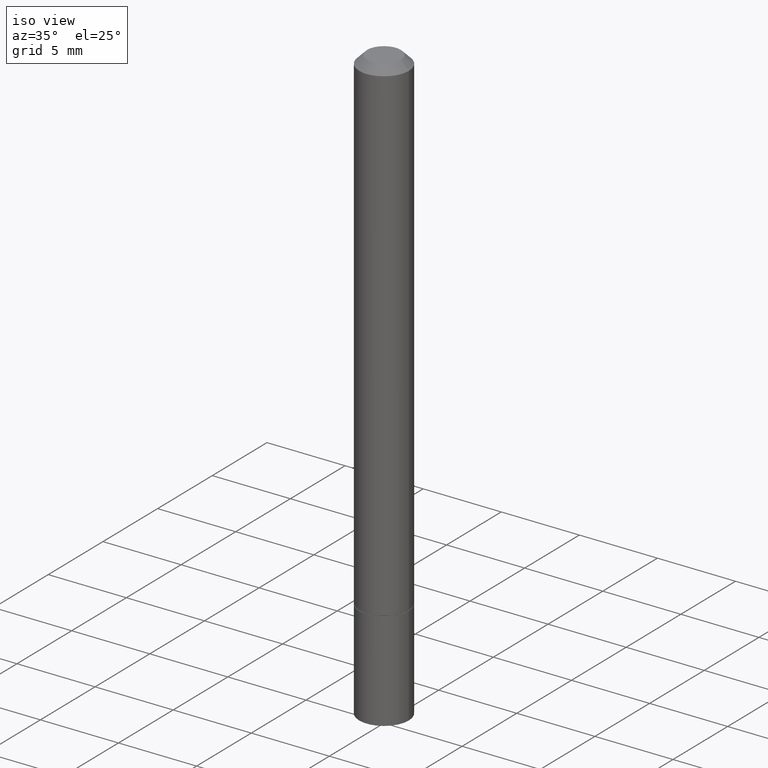
[diagram: clean part render]
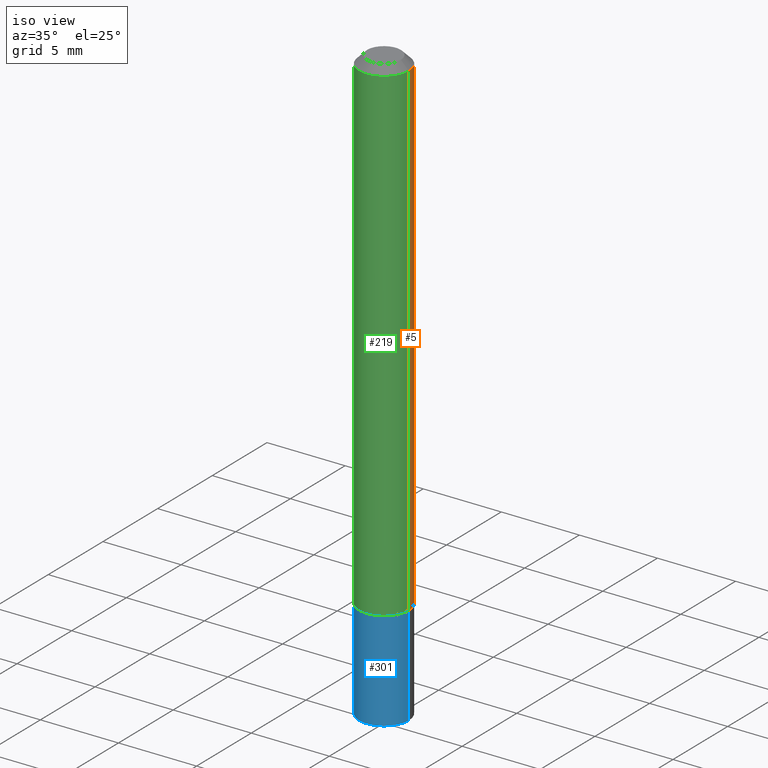
[diagram: same view with three faces highlighted in distinct colors, each labeled with its STEP entity id]
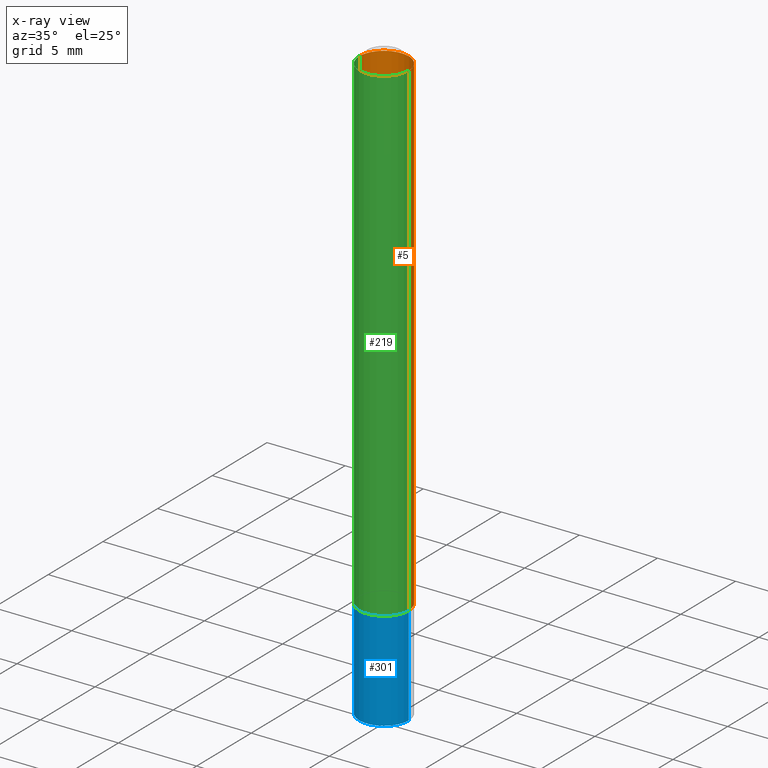
[diagram: x-ray of the same camera — body ghosted, the three highlighted faces saturated]
A machine part, iso view with three faces highlighted in distinct colors.
The next image is the same camera in x-ray (body ghosted, the three faces saturated) — at least one of them is partly hidden behind the body in this view.
Their STEP definitions:

[orange] entity #5 — the highlighted cylindrical surface (edge-blend (fillet) strip) has radius 1.5875 mm, axis along (-0, 0, 1).
#2 = VECTOR ( 'NONE', #300, 39.37007874015748143 ) ;
#5 = ADVANCED_FACE ( 'NONE', ( #310 ), #32, .T. ) ;
#18 = CARTESIAN_POINT ( 'NONE',  ( -0.06250000000000001388, 4.440892098500627148E-16, -3.074334431409317165E-30 ) ) ;
#32 = CYLINDRICAL_SURFACE ( 'NONE', #348, 0.06250000000000001388 ) ;
#33 = CIRCLE ( 'NONE', #92, 0.06249999999999995143 ) ;
#35 = EDGE_CURVE ( 'NONE', #54, #81, #33, .T. ) ;
#54 = VERTEX_POINT ( 'NONE', #334 ) ;
#59 = DIRECTION ( 'NONE',  ( -2.445468806185136597E-29, 3.491481338843145583E-15, 1.000000000000000000 ) ) ;
#60 = CARTESIAN_POINT ( 'NONE',  ( 4.890937612370285420E-31, -6.982962677686308865E-17, -0.02000000000000005246 ) ) ;
#67 = CARTESIAN_POINT ( 'NONE',  ( -0.06250000000000008327, -1.771255699645910018E-15, -1.248999999999999888 ) ) ;
#81 = VERTEX_POINT ( 'NONE', #248 ) ;
#86 = ORIENTED_EDGE ( 'NONE', *, *, #87, .F. ) ;
#87 = EDGE_CURVE ( 'NONE', #246, #54, #366, .T. ) ;
#89 = DIRECTION ( 'NONE',  ( 1.000000000000000000, -6.982962677686267499E-15, 4.876176775795935793E-29 ) ) ;
#92 = AXIS2_PLACEMENT_3D ( 'NONE', #60, #218, #311 ) ;
#96 = CARTESIAN_POINT ( 'NONE',  ( 0.06250000000000008327, -4.797295359570480345E-15, -1.248999999999999888 ) ) ;
#106 = VERTEX_POINT ( 'NONE', #67 ) ;
#112 = AXIS2_PLACEMENT_3D ( 'NONE', #323, #289, #175 ) ;
#134 = CARTESIAN_POINT ( 'NONE',  ( 0.000000000000000000, 0.000000000000000000, 0.000000000000000000 ) ) ;
#167 = DIRECTION ( 'NONE',  ( -2.445468806185136877E-29, 3.491481338843145188E-15, 1.000000000000000000 ) ) ;
#175 = DIRECTION ( 'NONE',  ( 1.000000000000000000, -6.982962677686261189E-15, 0.000000000000000000 ) ) ;
#178 = ORIENTED_EDGE ( 'NONE', *, *, #230, .T. ) ;
#180 = EDGE_LOOP ( 'NONE', ( #178, #302, #253, #86 ) ) ;
#217 = LINE ( 'NONE', #18, #2 ) ;
#218 = DIRECTION ( 'NONE',  ( -2.445468806185136597E-29, 3.491481338843145583E-15, 1.000000000000000000 ) ) ;
#230 = EDGE_CURVE ( 'NONE', #246, #106, #286, .T. ) ;
#246 = VERTEX_POINT ( 'NONE', #96 ) ;
#248 = CARTESIAN_POINT ( 'NONE',  ( -0.06249999999999995143, 3.666055405785282233E-16, -0.02000000000000005246 ) ) ;
#253 = ORIENTED_EDGE ( 'NONE', *, *, #35, .F. ) ;
#267 = EDGE_CURVE ( 'NONE', #106, #81, #217, .T. ) ;
#286 = CIRCLE ( 'NONE', #112, 0.06250000000000008327 ) ;
#289 = DIRECTION ( 'NONE',  ( -2.445468806185136597E-29, 3.491481338843145583E-15, 1.000000000000000000 ) ) ;
#300 = DIRECTION ( 'NONE',  ( -2.445468806185136877E-29, 3.491481338843145188E-15, 1.000000000000000000 ) ) ;
#302 = ORIENTED_EDGE ( 'NONE', *, *, #267, .T. ) ;
#310 = FACE_OUTER_BOUND ( 'NONE', #180, .T. ) ;
#311 = DIRECTION ( 'NONE',  ( 1.000000000000000000, -6.982962677686266711E-15, 0.000000000000000000 ) ) ;
#323 = CARTESIAN_POINT ( 'NONE',  ( 3.054390538925235704E-29, -4.360860192215088675E-15, -1.248999999999999888 ) ) ;
#334 = CARTESIAN_POINT ( 'NONE',  ( 0.06249999999999995143, -4.986107516375834292E-16, -0.02000000000000005246 ) ) ;
#345 = CARTESIAN_POINT ( 'NONE',  ( 0.06250000000000001388, -4.364351673553918173E-16, 3.047610484872460571E-30 ) ) ;
#348 = AXIS2_PLACEMENT_3D ( 'NONE', #134, #59, #89 ) ;
#353 = VECTOR ( 'NONE', #167, 39.37007874015748143 ) ;
#366 = LINE ( 'NONE', #345, #353 ) ;

[blue] entity #301 — the highlighted cylindrical surface (edge-blend (fillet) strip) has radius 1.5875 mm, axis along (-0, 0, 1).
#8 = CARTESIAN_POINT ( 'NONE',  ( 0.06250000000000001388, -5.673657175620109846E-15, -1.500000000000000222 ) ) ;
#27 = VERTEX_POINT ( 'NONE', #361 ) ;
#34 = AXIS2_PLACEMENT_3D ( 'NONE', #152, #241, #362 ) ;
#55 = EDGE_CURVE ( 'NONE', #183, #27, #83, .T. ) ;
#57 = CIRCLE ( 'NONE', #280, 0.06250000000000001388 ) ;
#74 = DIRECTION ( 'NONE',  ( -2.445468806185136877E-29, 3.491481338843145188E-15, 1.000000000000000000 ) ) ;
#77 = DIRECTION ( 'NONE',  ( -2.445468806185136597E-29, 3.491481338843145583E-15, 1.000000000000000000 ) ) ;
#83 = LINE ( 'NONE', #338, #174 ) ;
#95 = CARTESIAN_POINT ( 'NONE',  ( -0.06250000000000001388, -4.356697631059263102E-15, -1.500000000000000222 ) ) ;
#109 = LINE ( 'NONE', #127, #203 ) ;
#127 = CARTESIAN_POINT ( 'NONE',  ( -0.06250000000000001388, 4.440892098500627148E-16, -3.074334431409317165E-30 ) ) ;
#144 = DIRECTION ( 'NONE',  ( 1.000000000000000000, -6.982962677686261189E-15, 0.000000000000000000 ) ) ;
#149 = CARTESIAN_POINT ( 'NONE',  ( -0.06250000000000001388, -4.356697631059263102E-15, -1.250000000000000000 ) ) ;
#150 = CIRCLE ( 'NONE', #360, 0.06250000000000001388 ) ;
#152 = CARTESIAN_POINT ( 'NONE',  ( 0.000000000000000000, 0.000000000000000000, 0.000000000000000000 ) ) ;
#155 = CARTESIAN_POINT ( 'NONE',  ( 3.056836007731421306E-29, -4.364351673553932471E-15, -1.250000000000000000 ) ) ;
#174 = VECTOR ( 'NONE', #186, 39.37007874015748143 ) ;
#179 = FACE_OUTER_BOUND ( 'NONE', #224, .T. ) ;
#183 = VERTEX_POINT ( 'NONE', #8 ) ;
#186 = DIRECTION ( 'NONE',  ( -2.445468806185136877E-29, 3.491481338843145188E-15, 1.000000000000000000 ) ) ;
#194 = EDGE_CURVE ( 'NONE', #204, #183, #150, .T. ) ;
#203 = VECTOR ( 'NONE', #74, 39.37007874015748143 ) ;
#204 = VERTEX_POINT ( 'NONE', #95 ) ;
#207 = ORIENTED_EDGE ( 'NONE', *, *, #364, .F. ) ;
#224 = EDGE_LOOP ( 'NONE', ( #308, #272, #278, #207 ) ) ;
#231 = DIRECTION ( 'NONE',  ( -2.445468806185136597E-29, 3.491481338843145583E-15, 1.000000000000000000 ) ) ;
#234 = CARTESIAN_POINT ( 'NONE',  ( 3.668203209277704895E-29, -5.237222008264718177E-15, -1.500000000000000222 ) ) ;
#241 = DIRECTION ( 'NONE',  ( -2.445468806185136597E-29, 3.491481338843145583E-15, 1.000000000000000000 ) ) ;
#247 = CYLINDRICAL_SURFACE ( 'NONE', #34, 0.06250000000000001388 ) ;
#250 = VERTEX_POINT ( 'NONE', #149 ) ;
#270 = DIRECTION ( 'NONE',  ( 1.000000000000000000, -6.982962677686269077E-15, 0.000000000000000000 ) ) ;
#272 = ORIENTED_EDGE ( 'NONE', *, *, #194, .T. ) ;
#277 = EDGE_CURVE ( 'NONE', #204, #250, #109, .T. ) ;
#278 = ORIENTED_EDGE ( 'NONE', *, *, #55, .T. ) ;
#280 = AXIS2_PLACEMENT_3D ( 'NONE', #155, #77, #270 ) ;
#301 = ADVANCED_FACE ( 'NONE', ( #179 ), #247, .T. ) ;
#308 = ORIENTED_EDGE ( 'NONE', *, *, #277, .F. ) ;
#338 = CARTESIAN_POINT ( 'NONE',  ( 0.06250000000000001388, -4.364351673553918173E-16, 3.047610484872460571E-30 ) ) ;
#360 = AXIS2_PLACEMENT_3D ( 'NONE', #234, #231, #144 ) ;
#361 = CARTESIAN_POINT ( 'NONE',  ( 0.06250000000000001388, -4.800786840909324141E-15, -1.250000000000000000 ) ) ;
#362 = DIRECTION ( 'NONE',  ( 1.000000000000000000, -6.982962677686267499E-15, 4.876176775795935793E-29 ) ) ;
#364 = EDGE_CURVE ( 'NONE', #250, #27, #57, .T. ) ;

[green] entity #219 — the highlighted cylindrical surface (edge-blend (fillet) strip) has radius 1.5875 mm, axis along (-0, 0, 1).
#2 = VECTOR ( 'NONE', #300, 39.37007874015748143 ) ;
#18 = CARTESIAN_POINT ( 'NONE',  ( -0.06250000000000001388, 4.440892098500627148E-16, -3.074334431409317165E-30 ) ) ;
#52 = ORIENTED_EDGE ( 'NONE', *, *, #267, .F. ) ;
#54 = VERTEX_POINT ( 'NONE', #334 ) ;
#67 = CARTESIAN_POINT ( 'NONE',  ( -0.06250000000000008327, -1.771255699645910018E-15, -1.248999999999999888 ) ) ;
#81 = VERTEX_POINT ( 'NONE', #248 ) ;
#87 = EDGE_CURVE ( 'NONE', #246, #54, #366, .T. ) ;
#96 = CARTESIAN_POINT ( 'NONE',  ( 0.06250000000000008327, -4.797295359570480345E-15, -1.248999999999999888 ) ) ;
#102 = DIRECTION ( 'NONE',  ( -2.445468806185136597E-29, 3.491481338843145583E-15, 1.000000000000000000 ) ) ;
#103 = EDGE_LOOP ( 'NONE', ( #52, #332, #212, #114 ) ) ;
#105 = AXIS2_PLACEMENT_3D ( 'NONE', #129, #102, #208 ) ;
#106 = VERTEX_POINT ( 'NONE', #67 ) ;
#114 = ORIENTED_EDGE ( 'NONE', *, *, #322, .F. ) ;
#120 = DIRECTION ( 'NONE',  ( 1.000000000000000000, -6.982962677686267499E-15, 4.876176775795935793E-29 ) ) ;
#123 = AXIS2_PLACEMENT_3D ( 'NONE', #330, #305, #239 ) ;
#128 = CIRCLE ( 'NONE', #123, 0.06250000000000008327 ) ;
#129 = CARTESIAN_POINT ( 'NONE',  ( 4.890937612370285420E-31, -6.982962677686308865E-17, -0.02000000000000005246 ) ) ;
#146 = CARTESIAN_POINT ( 'NONE',  ( 0.000000000000000000, 0.000000000000000000, 0.000000000000000000 ) ) ;
#167 = DIRECTION ( 'NONE',  ( -2.445468806185136877E-29, 3.491481338843145188E-15, 1.000000000000000000 ) ) ;
#202 = CYLINDRICAL_SURFACE ( 'NONE', #243, 0.06250000000000001388 ) ;
#208 = DIRECTION ( 'NONE',  ( 1.000000000000000000, -6.982962677686266711E-15, 0.000000000000000000 ) ) ;
#212 = ORIENTED_EDGE ( 'NONE', *, *, #87, .T. ) ;
#217 = LINE ( 'NONE', #18, #2 ) ;
#219 = ADVANCED_FACE ( 'NONE', ( #328 ), #202, .T. ) ;
#239 = DIRECTION ( 'NONE',  ( 1.000000000000000000, -6.982962677686261189E-15, 0.000000000000000000 ) ) ;
#243 = AXIS2_PLACEMENT_3D ( 'NONE', #146, #261, #120 ) ;
#244 = CIRCLE ( 'NONE', #105, 0.06249999999999995143 ) ;
#246 = VERTEX_POINT ( 'NONE', #96 ) ;
#248 = CARTESIAN_POINT ( 'NONE',  ( -0.06249999999999995143, 3.666055405785282233E-16, -0.02000000000000005246 ) ) ;
#261 = DIRECTION ( 'NONE',  ( -2.445468806185136597E-29, 3.491481338843145583E-15, 1.000000000000000000 ) ) ;
#267 = EDGE_CURVE ( 'NONE', #106, #81, #217, .T. ) ;
#300 = DIRECTION ( 'NONE',  ( -2.445468806185136877E-29, 3.491481338843145188E-15, 1.000000000000000000 ) ) ;
#305 = DIRECTION ( 'NONE',  ( -2.445468806185136597E-29, 3.491481338843145583E-15, 1.000000000000000000 ) ) ;
#322 = EDGE_CURVE ( 'NONE', #81, #54, #244, .T. ) ;
#328 = FACE_OUTER_BOUND ( 'NONE', #103, .T. ) ;
#330 = CARTESIAN_POINT ( 'NONE',  ( 3.054390538925235704E-29, -4.360860192215088675E-15, -1.248999999999999888 ) ) ;
#332 = ORIENTED_EDGE ( 'NONE', *, *, #346, .T. ) ;
#334 = CARTESIAN_POINT ( 'NONE',  ( 0.06249999999999995143, -4.986107516375834292E-16, -0.02000000000000005246 ) ) ;
#345 = CARTESIAN_POINT ( 'NONE',  ( 0.06250000000000001388, -4.364351673553918173E-16, 3.047610484872460571E-30 ) ) ;
#346 = EDGE_CURVE ( 'NONE', #106, #246, #128, .T. ) ;
#353 = VECTOR ( 'NONE', #167, 39.37007874015748143 ) ;
#366 = LINE ( 'NONE', #345, #353 ) ;